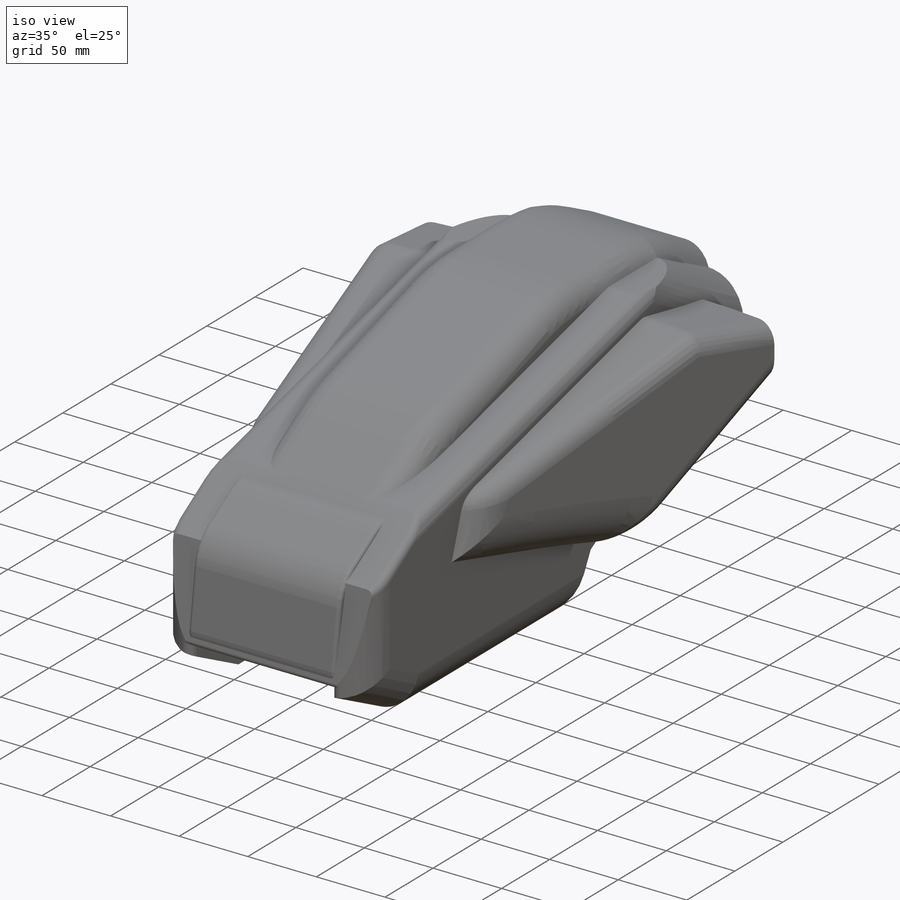
[diagram: iso view]
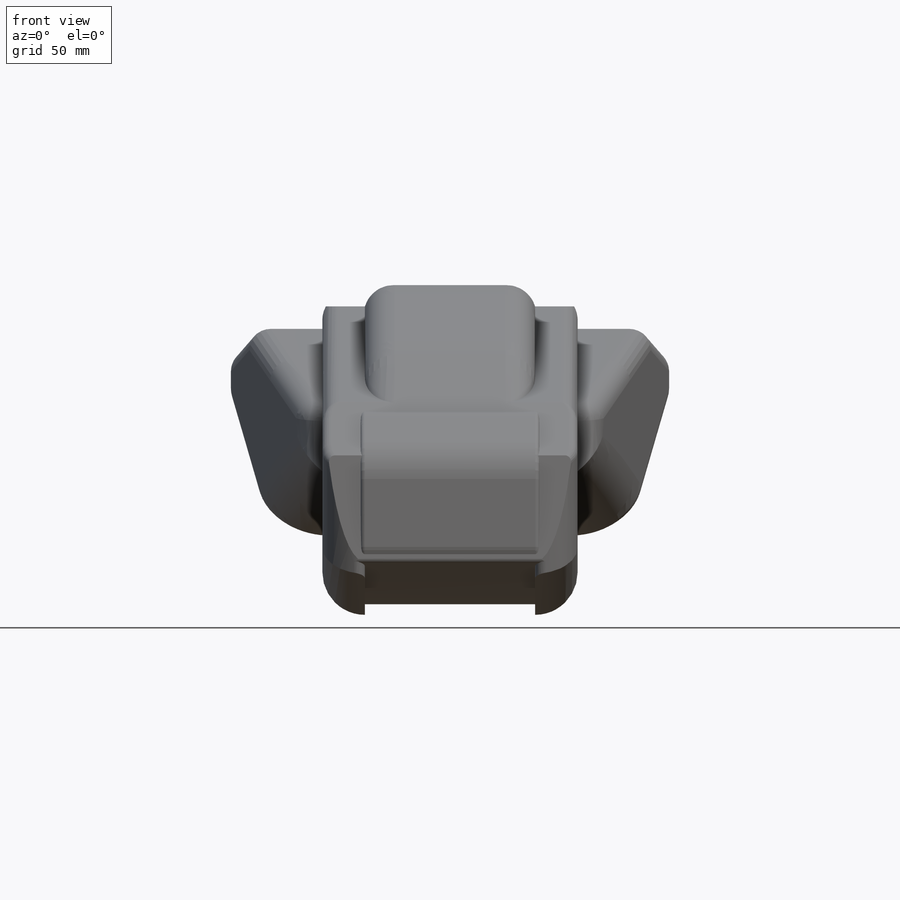
[diagram: front view]
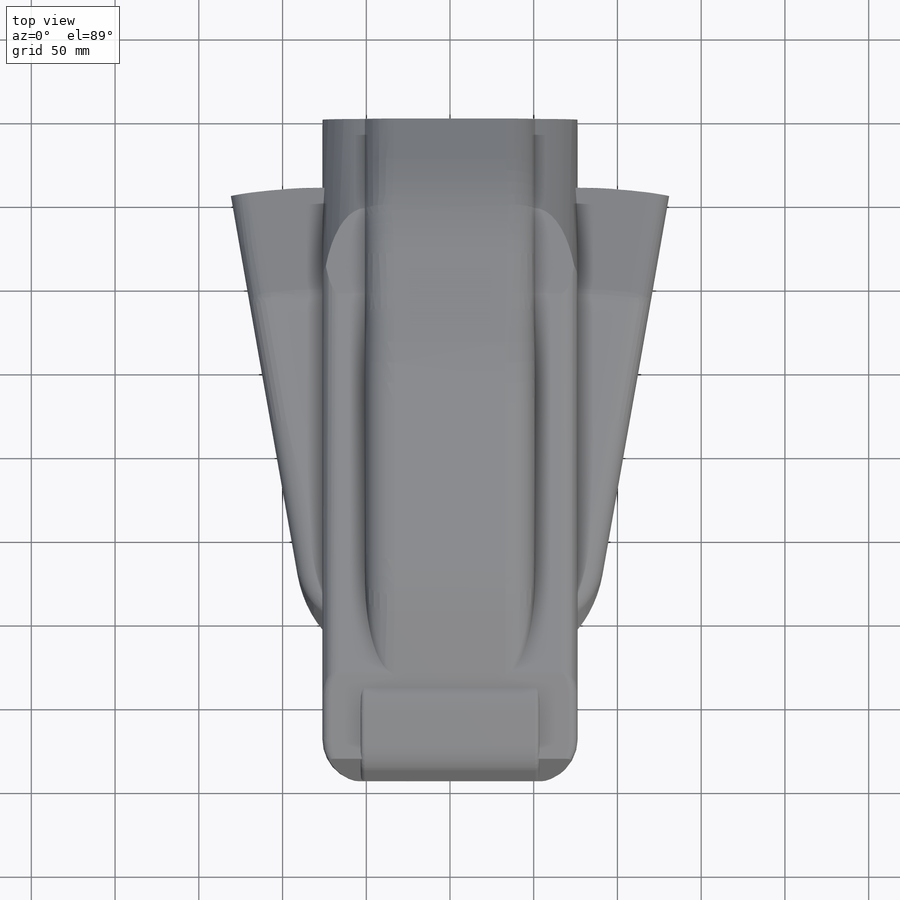
[diagram: top view]
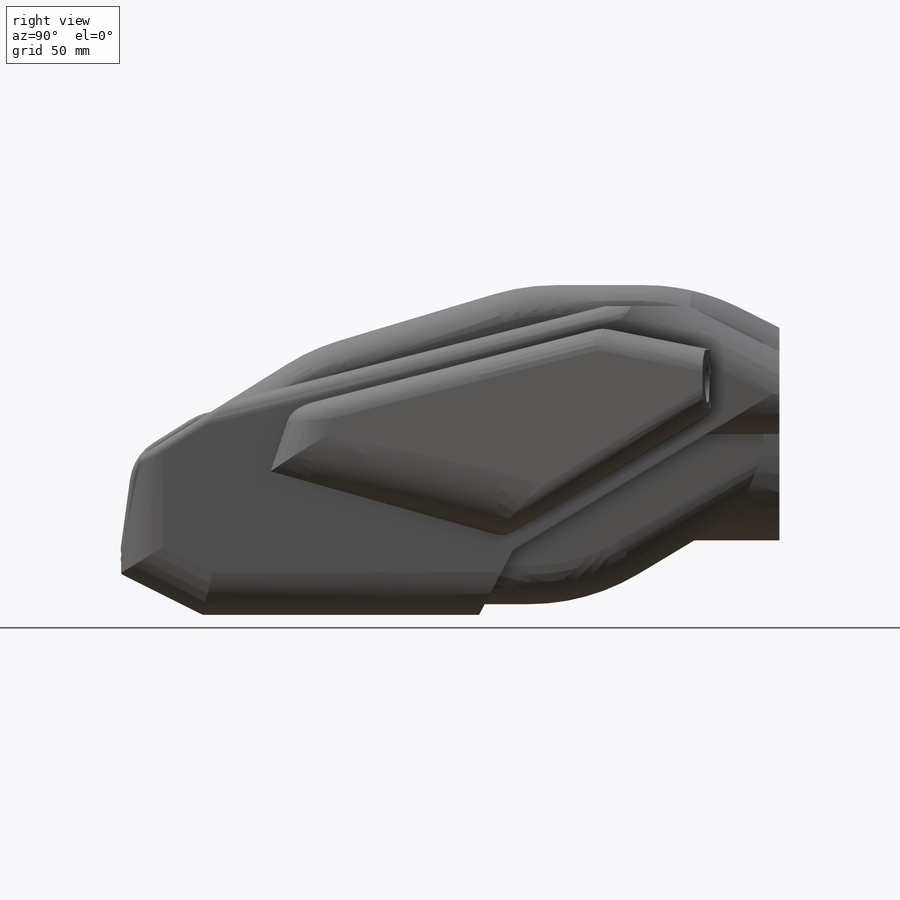
[diagram: right view]
SOLIDWORKS PART (.sldprt)
format: sldprt  version: not decoded by parser v0  size: 908,800 bytes
history: native  units: mm
features: fillet x16, sketch x5, extrude x3, mirror x2, material x1, revolve x1, cut_extrude x1 (+13 scaffold rows collapsed)
feature tree (42):
  scaffold x13  (default folders/planes/origin — collapsed)
  material  "Material <not specified>"
  sketch  "Sketch1"  dims[D1=127.0mm D2=25.4mm D3=50.8mm D4=101.6mm D5=38.1mm D6=127.0mm D7=63.5mm D8=101.6mm D9=12.7mm D10=63.5mm D11=25.4mm D12=50.8mm D13=228.6mm D14=50.8mm]
  extrude  "Boss-Extrude1"  Depth=101.6mm
  sketch  "Sketch2"  dims[c1.D1=6.35mm c1.D2=~5.679613mm c2.D1=6.35mm c2.D2=6.35mm c2.D3=165.1mm c2.D4=50.8mm c2.D5=12.7mm c2.D6=12.7mm c2.D7=50.8mm]
  extrude  "Boss-Extrude2"  Depth=25.4mm
  mirror  "Mirror1"
  sketch  "Sketch3"  dims[c1.D1=~187.314748mm c2.D1=~179.179244deg c3.D1=12.7mm c3.D2=12.7mm c3.D3=63.5mm c3.D4=12.7mm c3.D5=38.1mm c3.D6=38.1mm c3.D7=12.7mm c3.D8=139.7mm]
  revolve  "Revolve1"  Angle=10deg
  mirror  "Mirror2"
  fillet  "Fillet1"  Radius=127mm
  fillet  "Fillet2"  Radius=25.4mm
  fillet  "Fillet3"  Radius=5.08mm
  fillet  "Fillet4"  Radius=17.78mm
  fillet  "Fillet5"  Radius=10.16mm
  fillet  "Fillet6"  Radius=38.1mm
  fillet  "Fillet7"  Radius=38.1mm
  fillet  "Fillet8"  Radius=22.86mm
  fillet  "Fillet9"  Radius=50.8mm
  fillet  "Fillet10"  Radius=25.4mm
  fillet  "Fillet11"  Radius=25.4mm
  fillet  "Fillet12"  Radius=5.08mm
  fillet  "Fillet13"  Radius=2.54mm
  sketch  "Sketch4"  dims[c1.D7=7.62mm c1.D9=30.48mm c1.D1=3.81mm c1.D2=8.89mm c1.D3=25.4mm c1.D4=6.35mm c1.D5=76.2mm c1.D6=85.09mm c2.D7=1.27mm c2.D8=3.81mm c2.D3=2.54mm c2.D10=25.4mm]
  extrude  "Boss-Extrude3"  Depth=106.68mm
  fillet  "Fillet14"  Radius=2.54mm
  fillet  "Fillet15"  Radius=12.7mm
  fillet  "Fillet16"  Radius=12.7mm
  sketch  "Sketch5"  dims[c1.D1=76.2mm c1.D2=38.1mm c1.D6=12.7mm c1.D8=25.4mm c2.D1=12.7mm c2.D3=50.8mm c2.D4=20.32mm c2.D5=6.35mm c2.D7=20.32mm c2.D9=20.32mm c2.D10=20.32mm]
  cut_extrude  "Cut-Extrude1"  Depth=88.9mm
decode coverage: 26 of 28 modeling features carry decoded parameters
note: ~ marks probable driven/reference dimensions
note: suppression state not decoded; provenance and decode notes live in map.json
